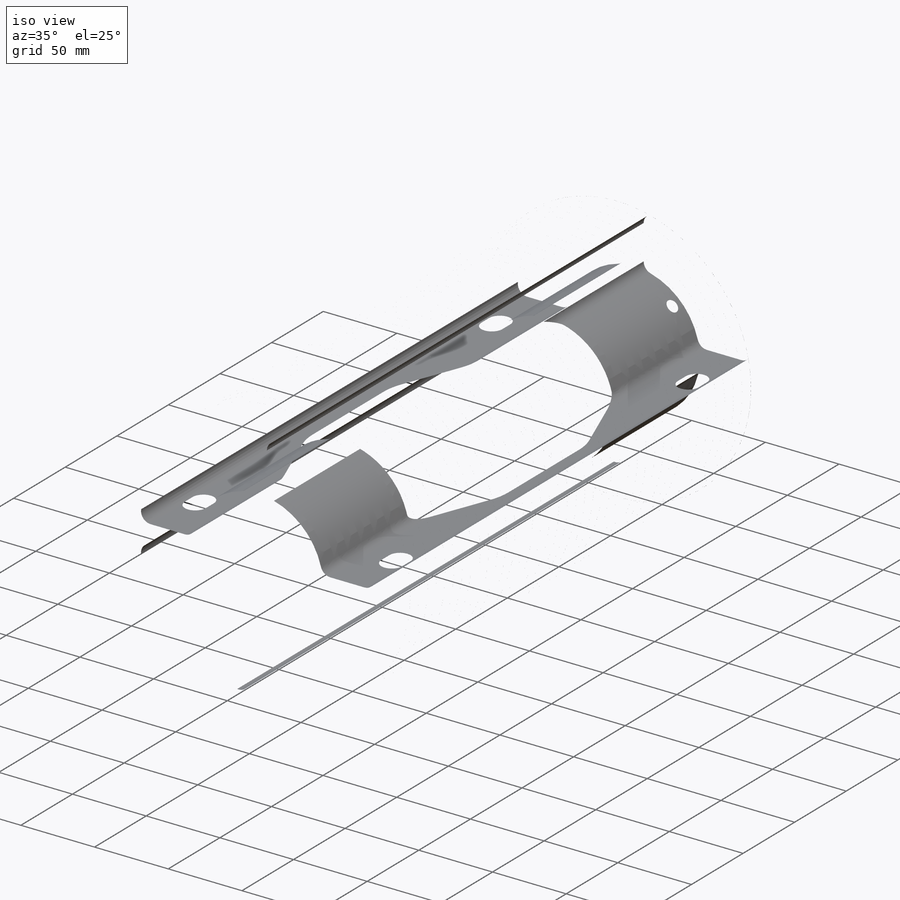
[diagram: iso view]
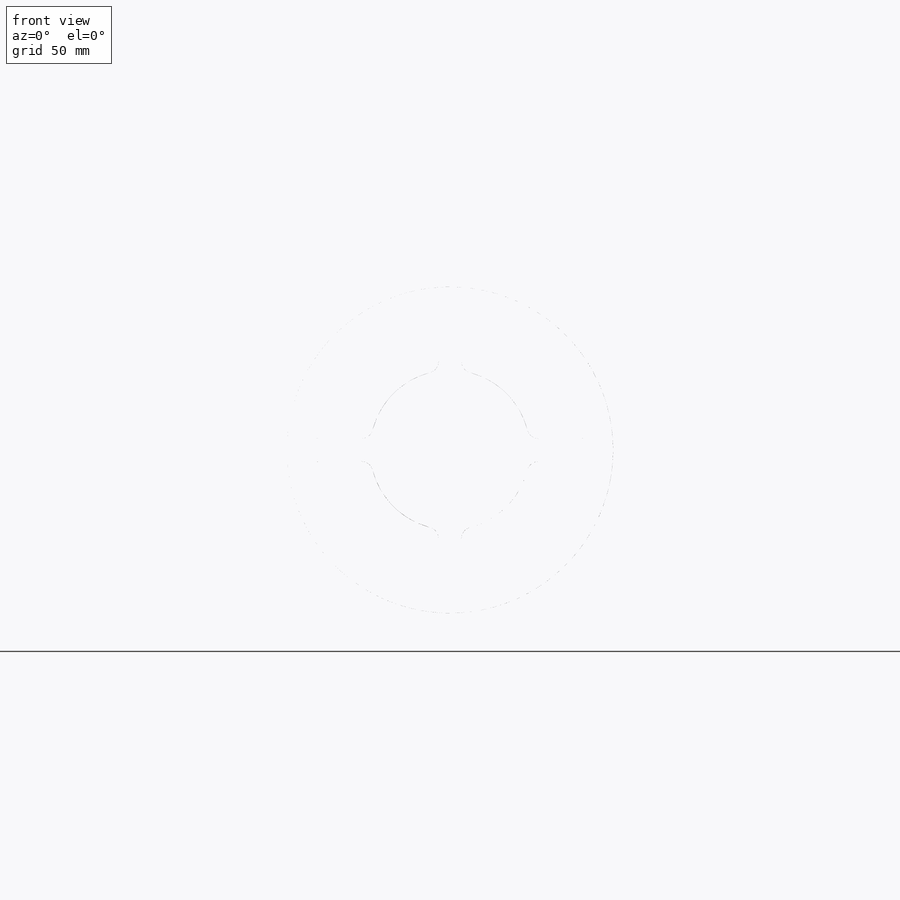
[diagram: front view]
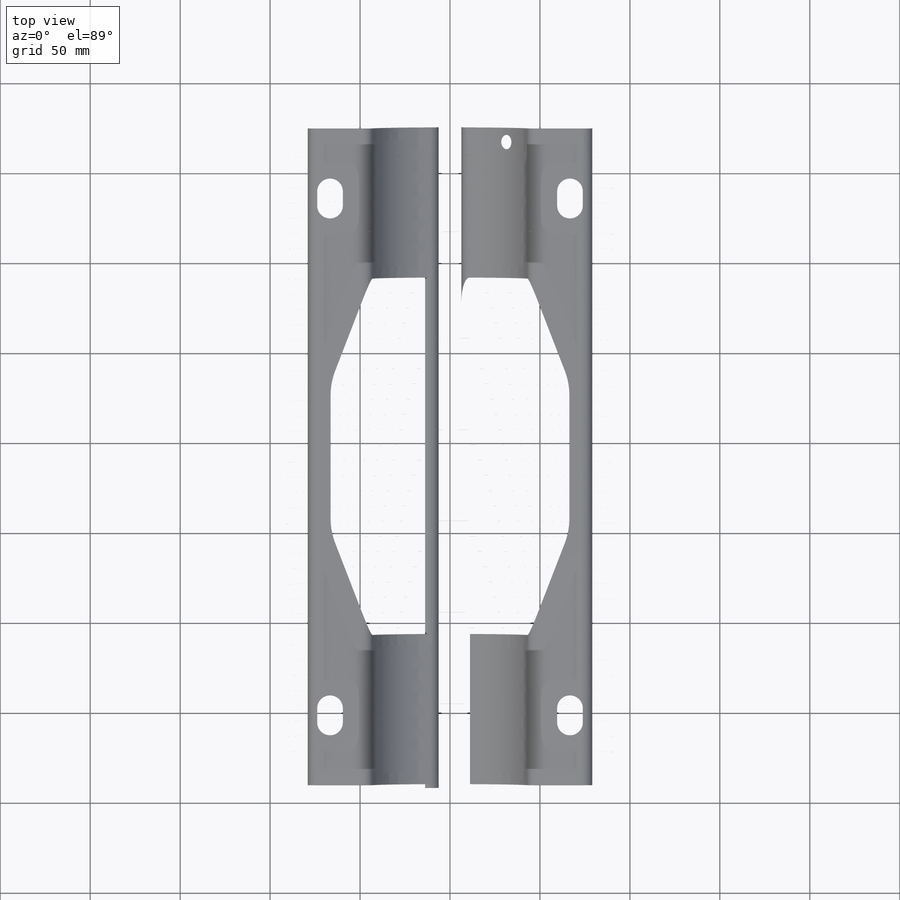
[diagram: top view]
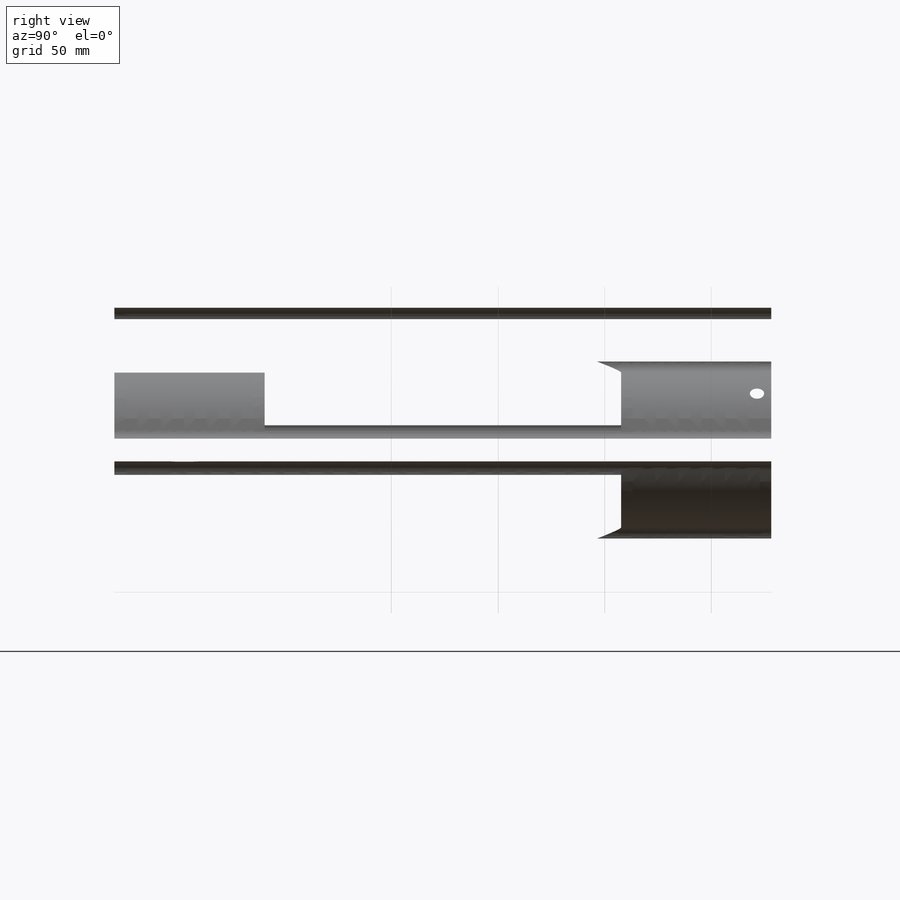
[diagram: right view]
SOLIDWORKS PART (.sldprt)
format: sldprt  version: not decoded by parser v0  size: 2,549,248 bytes
history: native  units: mm
features: sketch x16, plane x7, cut_extrude x7, extrude x3, cut_revolve x3, material x1, revolve x1, pattern_linear x1, hole x1, mirror x1, chamfer x1 (+11 scaffold rows collapsed)
feature tree (53):
  scaffold x11  (default folders/planes/origin — collapsed)
  material  "Material <not specified>"
  plane  "Plane1"  Offset=0mm
  plane  "Plane2"  Offset=0mm
  plane  "Plane3"  Offset=0mm
  sketch  "Sketch1"
  plane  "END PLANE"  Offset=381mm
  extrude  "Extrude1"  [1 undecoded]
  sketch  "Sketch2"  dims[D1=209.55mm D2=181.356mm]
  extrude  "Extrude2"  Depth=9.525mm
  sketch  "Sketch3"  dims[D1=209.55mm D2=181.356mm]
  extrude  "Extrude4"  Depth=9.525mm
  sketch  "Sketch4"
  cut_extrude  "Cut-Extrude1"  Depth=63.5mm
  sketch  "Sketch5"  dims[D1=160.3375mm]
  cut_extrude  "Cut-Extrude2"  Depth=7.9375mm
  sketch  "Sketch6"  dims[D1=160.3375mm]
  cut_extrude  "Cut-Extrude3"  Depth=7.9375mm
  sketch  "Sketch8"  dims[D1=0.7112mm D2=4.064mm D3=4.064mm D4=8.4582mm D5=90.678mm D6=9.525mm]
  revolve  "Revolve1"  Angle=360deg
  pattern_linear  "LPattern1"  Count1=43 Count2=1 Spacing1=8.466667mm Spacing2=50mm
  sketch  "Sketch9"  dims[c1.D2=4.064mm c1.D4=4.064mm c1.D5=4.064mm c1.D1=9.525mm c2.D2=12.7mm c2.D3=90.424mm c2.D4=4.7625mm c2.D5=4.572mm]
  cut_revolve  "Cut-Revolve1"  Angle=360deg
  sketch  "Sketch11"  dims[D5=4.064mm D1=12.7mm D2=4.7625mm D3=9.525mm D4=90.424mm]
  cut_revolve  "Cut-Revolve2"  Angle=360deg
  plane  "Plane5"
  sketch  "Sketch12"  dims[D1=11.1125mm D2=15.875mm D3=73.025mm]
  cut_extrude  "Cut-Extrude5"  [1 undecoded]
  plane  "Plane6"
  hole  "3/8-16 Tapped Hole1"  Diameter=7.9375mm Depth=98.425mm
  sketch  "Sketch14"  dims[D1=15.875mm]
  sketch  "Sketch13"  dims[hole-wizard template sketch: 47 standard entries collapsed; hole parameters kept: c15.Tap Drill Depth=98.425mm c15.D3=~14.816244mm c15.Drill Angle=118.0deg]
  plane  "Plane7"  Offset=101.6mm
  sketch  "Sketch18"  dims[D1=~10.31875mm D2=15.875mm]
  cut_extrude  "Cut-Extrude6"  Depth=25.4mm
  sketch  "Sketch19"  dims[c1.D2=~7.204748mm c1.D3=~7.204748mm c2.D2=~7.204748mm c2.D3=~7.204748mm c2.D7=~7.204748mm c2.D8=~7.204748mm c3.D7=~7.204748mm c3.D8=~7.14375mm c3.D9=~7.14375mm c3.D2=~7.14375mm c3.D4=~7.14375mm c3.D1=14.2875mm c3.D3=~11.254157mm c4.D4=~19.946883mm c4.D1=14.2875mm c5.D4=42.8625mm c5.D5=66.675mm c5.D6=7.9375mm c5.D7=~39.158334mm c5.D8=~59.040607mm c5.D9=14.2875mm c5.D10=~8.692726mm c5.D11=~39.158334mm c6.D7=14.2875mm c6.D10=7.9375mm c6.D11=42.8625mm c6.D12=66.675mm c6.D13=7.9502mm c6.D2=~16.230318mm c6.D3=14.2875mm c6.D4=7.9375mm c6.D5=~26.458333mm c7.D4=~26.458333mm c7.D2=~26.458333mm c8.D4=7.9375mm c8.D5=42.8625mm c8.D6=66.675mm]
  cut_extrude  "Cut-Extrude7"  [1 undecoded]
  mirror  "Mirror1"
  sketch  "Sketch20"  dims[c1.D7=38.1mm c1.D8=38.1mm c1.D1=66.675mm c1.D2=66.675mm c1.D3=68.2625mm c1.D4=117.475mm c1.D5=34.925mm c1.D6=34.925mm c2.D3=149.225mm c2.D4=149.225mm c2.D7=66.675mm]
  cut_revolve  "Cut-Revolve3"  Angle=360deg
  sketch  "Sketch21"  dims[D1=34.9631mm]
  cut_extrude  "Cut-Extrude8"  Depth=85.725mm
  chamfer  "Chamfer1"  Distance=3.175mm Angle=45deg
decode coverage: 28 of 34 modeling features carry decoded parameters
note: ~ marks probable driven/reference dimensions
note: 3 parameter values undecoded
summary: no parameter record found for 3 features
note: suppression state not decoded; provenance and decode notes live in map.json
